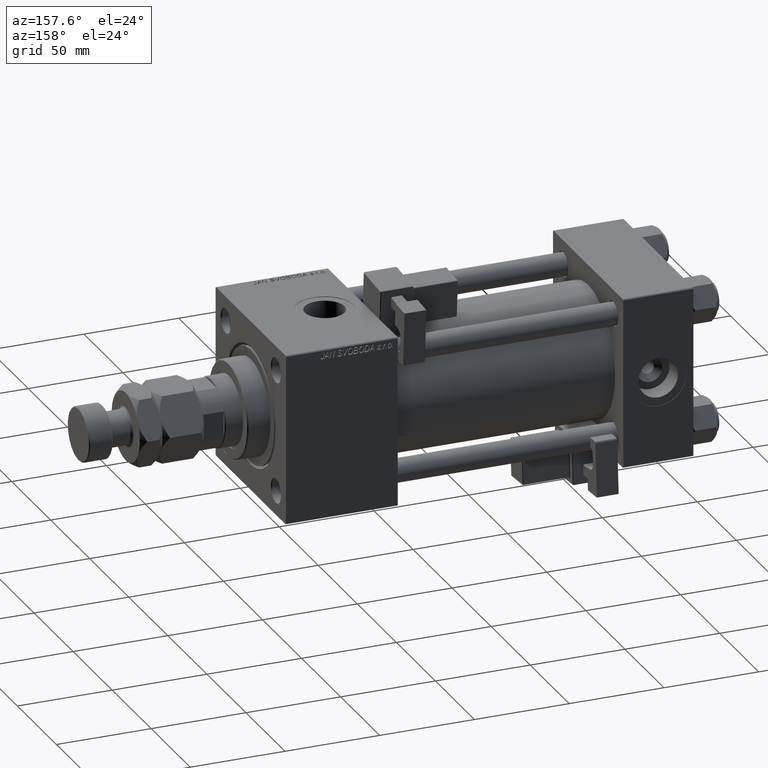
[diagram: clean part render]
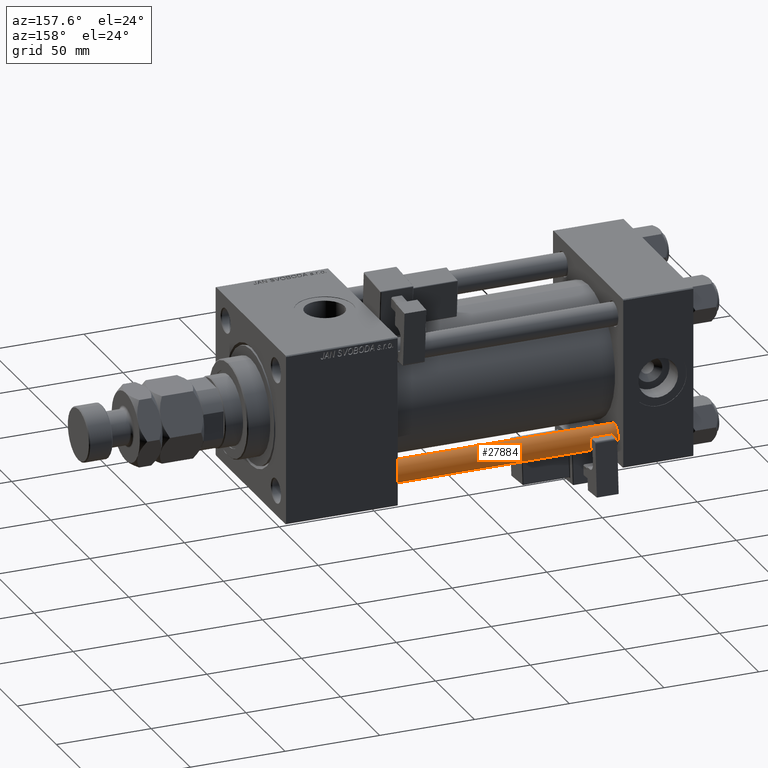
[diagram: same view with one face highlighted and labeled with its STEP entity id]
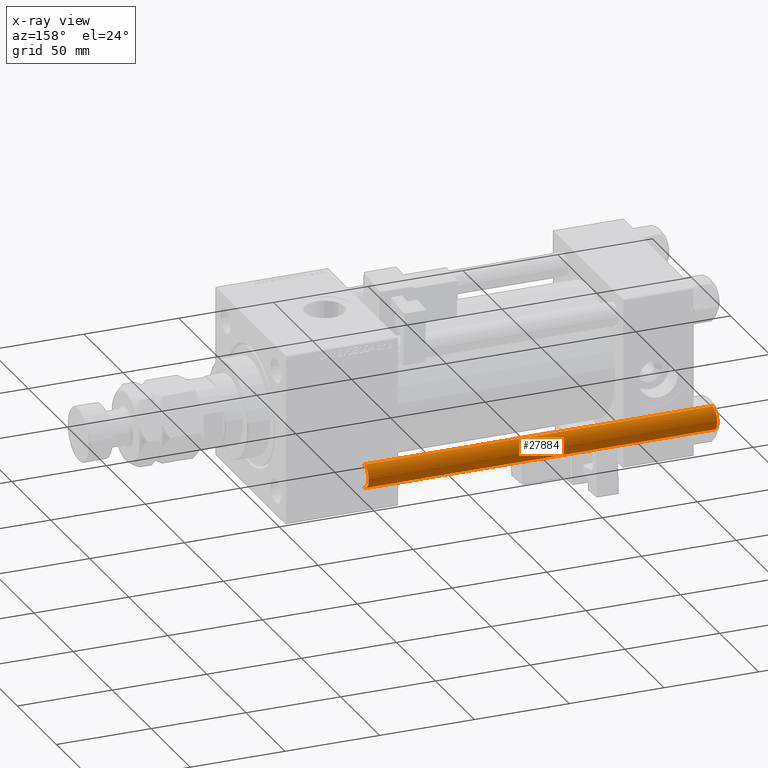
[diagram: x-ray of the same camera — body ghosted, the highlighted face saturated]
A machine part, auxiliary view. The second image highlights one B-rep face of the part: STEP entity #27884.
The next image is the same camera in x-ray: the body ghosted, the highlighted face saturated — about 0% of this face is hidden behind the body in this view.
In plain terms, the highlighted cylindrical surface (edge-blend (fillet) strip) has radius 6 mm, axis along (1, -0, -0).
Its self-contained STEP definition (entity closure, byte-faithful):
#500 = ORIENTED_EDGE ( 'NONE', *, *, #30990, .T. ) ;
#1097 = AXIS2_PLACEMENT_3D ( 'NONE', #18638, #30970, #35618 ) ;
#1466 = CARTESIAN_POINT ( 'NONE',  ( 0.000000000000000000, 0.000000000000000000, 0.5000000000000281997 ) ) ;
#3245 = CARTESIAN_POINT ( 'NONE',  ( 6.000000000000000888, 7.347880794884120722E-16, 0.5000000000000281997 ) ) ;
#3575 = VERTEX_POINT ( 'NONE', #3245 ) ;
#4163 = ORIENTED_EDGE ( 'NONE', *, *, #13905, .T. ) ;
#7009 = CARTESIAN_POINT ( 'NONE',  ( 0.000000000000000000, 0.000000000000000000, 184.5000000000000000 ) ) ;
#10580 = DIRECTION ( 'NONE',  ( 0.000000000000000000, 0.000000000000000000, -1.000000000000000000 ) ) ;
#13548 = LINE ( 'NONE', #25826, #15978 ) ;
#13905 = EDGE_CURVE ( 'NONE', #35977, #3575, #20205, .T. ) ;
#14595 = DIRECTION ( 'NONE',  ( -0.000000000000000000, -0.000000000000000000, 1.000000000000000000 ) ) ;
#15396 = VECTOR ( 'NONE', #28947, 1000.000000000000000 ) ;
#15978 = VECTOR ( 'NONE', #42548, 1000.000000000000000 ) ;
#16277 = CIRCLE ( 'NONE', #33749, 6.000000000000000888 ) ;
#17816 = CIRCLE ( 'NONE', #37941, 6.000000000000000888 ) ;
#18111 = CYLINDRICAL_SURFACE ( 'NONE', #1097, 6.000000000000000888 ) ;
#18638 = CARTESIAN_POINT ( 'NONE',  ( 0.000000000000000000, 0.000000000000000000, 185.0000000000000000 ) ) ;
#20205 = LINE ( 'NONE', #27868, #15396 ) ;
#22490 = ORIENTED_EDGE ( 'NONE', *, *, #53403, .T. ) ;
#22742 = FACE_OUTER_BOUND ( 'NONE', #50974, .T. ) ;
#23614 = CARTESIAN_POINT ( 'NONE',  ( -6.000000000000000888, 0.000000000000000000, 0.5000000000000281997 ) ) ;
#25826 = CARTESIAN_POINT ( 'NONE',  ( -6.000000000000000888, 0.000000000000000000, 185.0000000000000000 ) ) ;
#27515 = EDGE_CURVE ( 'NONE', #35266, #39654, #13548, .T. ) ;
#27868 = CARTESIAN_POINT ( 'NONE',  ( 6.000000000000000888, 7.347880794884120722E-16, 185.0000000000000000 ) ) ;
#27884 = ADVANCED_FACE ( 'NONE', ( #22742 ), #18111, .T. ) ;
#28947 = DIRECTION ( 'NONE',  ( -0.000000000000000000, -0.000000000000000000, -1.000000000000000000 ) ) ;
#29864 = ORIENTED_EDGE ( 'NONE', *, *, #27515, .F. ) ;
#30970 = DIRECTION ( 'NONE',  ( -0.000000000000000000, -0.000000000000000000, -1.000000000000000000 ) ) ;
#30990 = EDGE_CURVE ( 'NONE', #3575, #39654, #17816, .T. ) ;
#33749 = AXIS2_PLACEMENT_3D ( 'NONE', #7009, #10580, #53253 ) ;
#35266 = VERTEX_POINT ( 'NONE', #50622 ) ;
#35618 = DIRECTION ( 'NONE',  ( -1.000000000000000000, 0.000000000000000000, 0.000000000000000000 ) ) ;
#35977 = VERTEX_POINT ( 'NONE', #41956 ) ;
#37941 = AXIS2_PLACEMENT_3D ( 'NONE', #1466, #14595, #43855 ) ;
#39654 = VERTEX_POINT ( 'NONE', #23614 ) ;
#41956 = CARTESIAN_POINT ( 'NONE',  ( 6.000000000000000888, 7.347880794884120722E-16, 184.5000000000000000 ) ) ;
#42548 = DIRECTION ( 'NONE',  ( -0.000000000000000000, -0.000000000000000000, -1.000000000000000000 ) ) ;
#43855 = DIRECTION ( 'NONE',  ( 1.000000000000000000, 0.000000000000000000, 0.000000000000000000 ) ) ;
#50622 = CARTESIAN_POINT ( 'NONE',  ( -6.000000000000000888, 0.000000000000000000, 184.5000000000000000 ) ) ;
#50974 = EDGE_LOOP ( 'NONE', ( #22490, #4163, #500, #29864 ) ) ;
#53253 = DIRECTION ( 'NONE',  ( 1.000000000000000000, 0.000000000000000000, 0.000000000000000000 ) ) ;
#53403 = EDGE_CURVE ( 'NONE', #35266, #35977, #16277, .T. ) ;